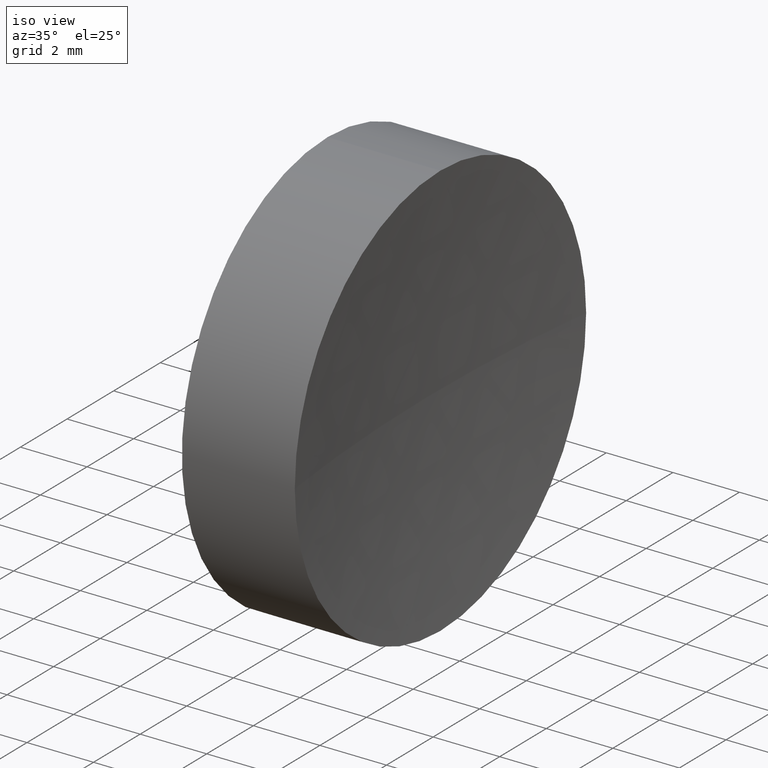
[diagram: clean part render]
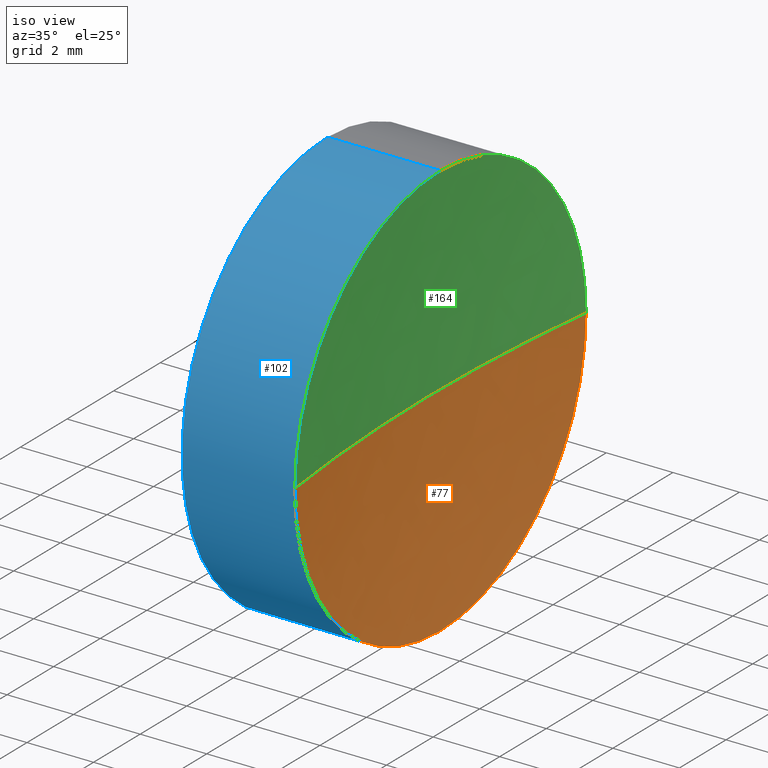
[diagram: same view with three faces highlighted in distinct colors, each labeled with its STEP entity id]
A machine part, iso view with three faces highlighted in distinct colors.
Their STEP definitions:

[orange] entity #77 — the highlighted spherical surface has radius 50 mm.
#2 = CIRCLE ( 'NONE', #156, 6.250000000000005300 ) ;
#4 = CIRCLE ( 'NONE', #84, 49.99999999999999300 ) ;
#6 = AXIS2_PLACEMENT_3D ( 'NONE', #70, #12, #141 ) ;
#8 = VERTEX_POINT ( 'NONE', #180 ) ;
#9 = CARTESIAN_POINT ( 'NONE',  ( 60.93849051950596200, 40.93901056168623100, 7.654042494670954600E-016 ) ) ;
#12 = DIRECTION ( 'NONE',  ( 0.0000000000000000000, 0.0000000000000000000, 1.000000000000000000 ) ) ;
#18 = EDGE_CURVE ( 'NONE', #78, #8, #68, .T. ) ;
#19 = DIRECTION ( 'NONE',  ( 0.0000000000000000000, -1.000000000000000000, -1.224646799147353200E-016 ) ) ;
#26 = DIRECTION ( 'NONE',  ( -1.000000000000000000, -0.0000000000000000000, -0.0000000000000000000 ) ) ;
#28 = EDGE_LOOP ( 'NONE', ( #58, #91, #139, #57 ) ) ;
#38 = DIRECTION ( 'NONE',  ( -1.000000000000000000, -0.0000000000000000000, -0.0000000000000000000 ) ) ;
#46 = CARTESIAN_POINT ( 'NONE',  ( 110.5463276019670400, 34.68901056168623100, 0.0000000000000000000 ) ) ;
#48 = VERTEX_POINT ( 'NONE', #9 ) ;
#51 = CARTESIAN_POINT ( 'NONE',  ( 110.5463276019670400, 34.68901056168623100, 0.0000000000000000000 ) ) ;
#57 = ORIENTED_EDGE ( 'NONE', *, *, #114, .F. ) ;
#58 = ORIENTED_EDGE ( 'NONE', *, *, #96, .F. ) ;
#60 = EDGE_CURVE ( 'NONE', #48, #8, #4, .T. ) ;
#68 = CIRCLE ( 'NONE', #133, 49.99999999999999300 ) ;
#70 = CARTESIAN_POINT ( 'NONE',  ( 110.5463276019670400, 34.68901056168623100, 0.0000000000000000000 ) ) ;
#72 = FACE_OUTER_BOUND ( 'NONE', #28, .T. ) ;
#77 = ADVANCED_FACE ( 'NONE', ( #72 ), #166, .F. ) ;
#78 = VERTEX_POINT ( 'NONE', #140 ) ;
#84 = AXIS2_PLACEMENT_3D ( 'NONE', #46, #92, #19 ) ;
#91 = ORIENTED_EDGE ( 'NONE', *, *, #60, .T. ) ;
#92 = DIRECTION ( 'NONE',  ( 0.0000000000000000000, -1.224646799147353200E-016, 1.000000000000000000 ) ) ;
#96 = EDGE_CURVE ( 'NONE', #48, #104, #2, .T. ) ;
#104 = VERTEX_POINT ( 'NONE', #183 ) ;
#111 = CARTESIAN_POINT ( 'NONE',  ( 60.93849051950596200, 34.68901056168621700, 0.0000000000000000000 ) ) ;
#114 = EDGE_CURVE ( 'NONE', #104, #78, #146, .T. ) ;
#133 = AXIS2_PLACEMENT_3D ( 'NONE', #51, #153, #150 ) ;
#139 = ORIENTED_EDGE ( 'NONE', *, *, #18, .F. ) ;
#140 = CARTESIAN_POINT ( 'NONE',  ( 60.93849051950596200, 28.43901056168622100, 0.0000000000000000000 ) ) ;
#141 = DIRECTION ( 'NONE',  ( 0.0000000000000000000, -1.000000000000000000, 0.0000000000000000000 ) ) ;
#143 = AXIS2_PLACEMENT_3D ( 'NONE', #111, #26, #172 ) ;
#146 = CIRCLE ( 'NONE', #143, 6.250000000000005300 ) ;
#150 = DIRECTION ( 'NONE',  ( -1.000000000000000000, 0.0000000000000000000, 0.0000000000000000000 ) ) ;
#153 = DIRECTION ( 'NONE',  ( 0.0000000000000000000, 0.0000000000000000000, -1.000000000000000000 ) ) ;
#156 = AXIS2_PLACEMENT_3D ( 'NONE', #182, #38, #176 ) ;
#166 = SPHERICAL_SURFACE ( 'NONE', #6, 49.99999999999999300 ) ;
#172 = DIRECTION ( 'NONE',  ( 0.0000000000000000000, 0.0000000000000000000, 1.000000000000000000 ) ) ;
#176 = DIRECTION ( 'NONE',  ( 0.0000000000000000000, 0.0000000000000000000, 1.000000000000000000 ) ) ;
#180 = CARTESIAN_POINT ( 'NONE',  ( 60.54632760196703600, 34.68901056168623100, 0.0000000000000000000 ) ) ;
#182 = CARTESIAN_POINT ( 'NONE',  ( 60.93849051950596200, 34.68901056168621700, 0.0000000000000000000 ) ) ;
#183 = CARTESIAN_POINT ( 'NONE',  ( 60.93849051950596200, 34.68901056168621700, -6.250000000000004400 ) ) ;

[blue] entity #102 — the highlighted cylindrical surface (partial cylindrical patch) has radius 6.25 mm, axis along (-1, -0, -0).
#7 = CARTESIAN_POINT ( 'NONE',  ( 57.54632776745975800, 34.68901056168621700, 6.249999999999998200 ) ) ;
#17 = ORIENTED_EDGE ( 'NONE', *, *, #37, .T. ) ;
#21 = CARTESIAN_POINT ( 'NONE',  ( 57.54632776745975800, 34.68901056168621700, -6.249999999999998200 ) ) ;
#22 = DIRECTION ( 'NONE',  ( 0.0000000000000000000, 0.0000000000000000000, 1.000000000000000000 ) ) ;
#23 = DIRECTION ( 'NONE',  ( -1.000000000000000000, -0.0000000000000000000, -0.0000000000000000000 ) ) ;
#24 = AXIS2_PLACEMENT_3D ( 'NONE', #181, #152, #179 ) ;
#26 = DIRECTION ( 'NONE',  ( -1.000000000000000000, -0.0000000000000000000, -0.0000000000000000000 ) ) ;
#29 = EDGE_CURVE ( 'NONE', #104, #31, #90, .T. ) ;
#30 = EDGE_CURVE ( 'NONE', #78, #94, #138, .T. ) ;
#31 = VERTEX_POINT ( 'NONE', #21 ) ;
#34 = CARTESIAN_POINT ( 'NONE',  ( 54.49257150108255100, 34.68901056168621700, 6.250000000000001800 ) ) ;
#35 = CARTESIAN_POINT ( 'NONE',  ( 54.49257150108255100, 34.68901056168621700, -6.250000000000001800 ) ) ;
#37 = EDGE_CURVE ( 'NONE', #94, #66, #168, .T. ) ;
#39 = CIRCLE ( 'NONE', #45, 6.249999999999998200 ) ;
#45 = AXIS2_PLACEMENT_3D ( 'NONE', #158, #69, #22 ) ;
#50 = EDGE_LOOP ( 'NONE', ( #155, #101, #135, #17, #124 ) ) ;
#52 = DIRECTION ( 'NONE',  ( 0.0000000000000000000, 0.0000000000000000000, 1.000000000000000000 ) ) ;
#56 = CARTESIAN_POINT ( 'NONE',  ( 60.93849051950596200, 34.68901056168621700, 6.250000000000004400 ) ) ;
#66 = VERTEX_POINT ( 'NONE', #7 ) ;
#69 = DIRECTION ( 'NONE',  ( -1.000000000000000000, -0.0000000000000000000, -0.0000000000000000000 ) ) ;
#71 = CARTESIAN_POINT ( 'NONE',  ( 54.49257150108255100, 34.68901056168621700, 0.0000000000000000000 ) ) ;
#78 = VERTEX_POINT ( 'NONE', #140 ) ;
#90 = LINE ( 'NONE', #35, #116 ) ;
#94 = VERTEX_POINT ( 'NONE', #56 ) ;
#101 = ORIENTED_EDGE ( 'NONE', *, *, #114, .T. ) ;
#102 = ADVANCED_FACE ( 'NONE', ( #161 ), #110, .T. ) ;
#104 = VERTEX_POINT ( 'NONE', #183 ) ;
#108 = DIRECTION ( 'NONE',  ( -1.000000000000000000, -0.0000000000000000000, -0.0000000000000000000 ) ) ;
#110 = CYLINDRICAL_SURFACE ( 'NONE', #148, 6.250000000000001800 ) ;
#111 = CARTESIAN_POINT ( 'NONE',  ( 60.93849051950596200, 34.68901056168621700, 0.0000000000000000000 ) ) ;
#114 = EDGE_CURVE ( 'NONE', #104, #78, #146, .T. ) ;
#116 = VECTOR ( 'NONE', #137, 1000.000000000000000 ) ;
#124 = ORIENTED_EDGE ( 'NONE', *, *, #145, .F. ) ;
#128 = VECTOR ( 'NONE', #108, 1000.000000000000000 ) ;
#135 = ORIENTED_EDGE ( 'NONE', *, *, #30, .T. ) ;
#137 = DIRECTION ( 'NONE',  ( -1.000000000000000000, -0.0000000000000000000, -0.0000000000000000000 ) ) ;
#138 = CIRCLE ( 'NONE', #24, 6.250000000000005300 ) ;
#140 = CARTESIAN_POINT ( 'NONE',  ( 60.93849051950596200, 28.43901056168622100, 0.0000000000000000000 ) ) ;
#143 = AXIS2_PLACEMENT_3D ( 'NONE', #111, #26, #172 ) ;
#145 = EDGE_CURVE ( 'NONE', #31, #66, #39, .T. ) ;
#146 = CIRCLE ( 'NONE', #143, 6.250000000000005300 ) ;
#148 = AXIS2_PLACEMENT_3D ( 'NONE', #71, #23, #52 ) ;
#152 = DIRECTION ( 'NONE',  ( -1.000000000000000000, -0.0000000000000000000, -0.0000000000000000000 ) ) ;
#155 = ORIENTED_EDGE ( 'NONE', *, *, #29, .F. ) ;
#158 = CARTESIAN_POINT ( 'NONE',  ( 57.54632776745975800, 34.68901056168621700, 0.0000000000000000000 ) ) ;
#161 = FACE_OUTER_BOUND ( 'NONE', #50, .T. ) ;
#168 = LINE ( 'NONE', #34, #128 ) ;
#172 = DIRECTION ( 'NONE',  ( 0.0000000000000000000, 0.0000000000000000000, 1.000000000000000000 ) ) ;
#179 = DIRECTION ( 'NONE',  ( 0.0000000000000000000, 0.0000000000000000000, 1.000000000000000000 ) ) ;
#181 = CARTESIAN_POINT ( 'NONE',  ( 60.93849051950596200, 34.68901056168621700, 0.0000000000000000000 ) ) ;
#183 = CARTESIAN_POINT ( 'NONE',  ( 60.93849051950596200, 34.68901056168621700, -6.250000000000004400 ) ) ;

[green] entity #164 — the highlighted spherical surface has radius 50 mm.
#4 = CIRCLE ( 'NONE', #84, 49.99999999999999300 ) ;
#5 = FACE_OUTER_BOUND ( 'NONE', #44, .T. ) ;
#8 = VERTEX_POINT ( 'NONE', #180 ) ;
#9 = CARTESIAN_POINT ( 'NONE',  ( 60.93849051950596200, 40.93901056168623100, 7.654042494670954600E-016 ) ) ;
#18 = EDGE_CURVE ( 'NONE', #78, #8, #68, .T. ) ;
#19 = DIRECTION ( 'NONE',  ( 0.0000000000000000000, -1.000000000000000000, -1.224646799147353200E-016 ) ) ;
#24 = AXIS2_PLACEMENT_3D ( 'NONE', #181, #152, #179 ) ;
#25 = DIRECTION ( 'NONE',  ( -1.000000000000000000, -0.0000000000000000000, -0.0000000000000000000 ) ) ;
#30 = EDGE_CURVE ( 'NONE', #78, #94, #138, .T. ) ;
#32 = ORIENTED_EDGE ( 'NONE', *, *, #30, .F. ) ;
#33 = AXIS2_PLACEMENT_3D ( 'NONE', #86, #25, #55 ) ;
#42 = CIRCLE ( 'NONE', #33, 6.250000000000005300 ) ;
#44 = EDGE_LOOP ( 'NONE', ( #167, #162, #32, #134 ) ) ;
#46 = CARTESIAN_POINT ( 'NONE',  ( 110.5463276019670400, 34.68901056168623100, 0.0000000000000000000 ) ) ;
#48 = VERTEX_POINT ( 'NONE', #9 ) ;
#51 = CARTESIAN_POINT ( 'NONE',  ( 110.5463276019670400, 34.68901056168623100, 0.0000000000000000000 ) ) ;
#55 = DIRECTION ( 'NONE',  ( 0.0000000000000000000, 0.0000000000000000000, 1.000000000000000000 ) ) ;
#56 = CARTESIAN_POINT ( 'NONE',  ( 60.93849051950596200, 34.68901056168621700, 6.250000000000004400 ) ) ;
#60 = EDGE_CURVE ( 'NONE', #48, #8, #4, .T. ) ;
#63 = SPHERICAL_SURFACE ( 'NONE', #165, 49.99999999999999300 ) ;
#68 = CIRCLE ( 'NONE', #133, 49.99999999999999300 ) ;
#78 = VERTEX_POINT ( 'NONE', #140 ) ;
#84 = AXIS2_PLACEMENT_3D ( 'NONE', #46, #92, #19 ) ;
#86 = CARTESIAN_POINT ( 'NONE',  ( 60.93849051950596200, 34.68901056168621700, 0.0000000000000000000 ) ) ;
#92 = DIRECTION ( 'NONE',  ( 0.0000000000000000000, -1.224646799147353200E-016, 1.000000000000000000 ) ) ;
#94 = VERTEX_POINT ( 'NONE', #56 ) ;
#97 = CARTESIAN_POINT ( 'NONE',  ( 110.5463276019670400, 34.68901056168623100, 0.0000000000000000000 ) ) ;
#107 = EDGE_CURVE ( 'NONE', #94, #48, #42, .T. ) ;
#112 = DIRECTION ( 'NONE',  ( 0.0000000000000000000, -1.000000000000000000, 0.0000000000000000000 ) ) ;
#133 = AXIS2_PLACEMENT_3D ( 'NONE', #51, #153, #150 ) ;
#134 = ORIENTED_EDGE ( 'NONE', *, *, #18, .T. ) ;
#138 = CIRCLE ( 'NONE', #24, 6.250000000000005300 ) ;
#140 = CARTESIAN_POINT ( 'NONE',  ( 60.93849051950596200, 28.43901056168622100, 0.0000000000000000000 ) ) ;
#142 = DIRECTION ( 'NONE',  ( 0.0000000000000000000, 0.0000000000000000000, 1.000000000000000000 ) ) ;
#150 = DIRECTION ( 'NONE',  ( -1.000000000000000000, 0.0000000000000000000, 0.0000000000000000000 ) ) ;
#152 = DIRECTION ( 'NONE',  ( -1.000000000000000000, -0.0000000000000000000, -0.0000000000000000000 ) ) ;
#153 = DIRECTION ( 'NONE',  ( 0.0000000000000000000, 0.0000000000000000000, -1.000000000000000000 ) ) ;
#162 = ORIENTED_EDGE ( 'NONE', *, *, #107, .F. ) ;
#164 = ADVANCED_FACE ( 'NONE', ( #5 ), #63, .F. ) ;
#165 = AXIS2_PLACEMENT_3D ( 'NONE', #97, #142, #112 ) ;
#167 = ORIENTED_EDGE ( 'NONE', *, *, #60, .F. ) ;
#179 = DIRECTION ( 'NONE',  ( 0.0000000000000000000, 0.0000000000000000000, 1.000000000000000000 ) ) ;
#180 = CARTESIAN_POINT ( 'NONE',  ( 60.54632760196703600, 34.68901056168623100, 0.0000000000000000000 ) ) ;
#181 = CARTESIAN_POINT ( 'NONE',  ( 60.93849051950596200, 34.68901056168621700, 0.0000000000000000000 ) ) ;